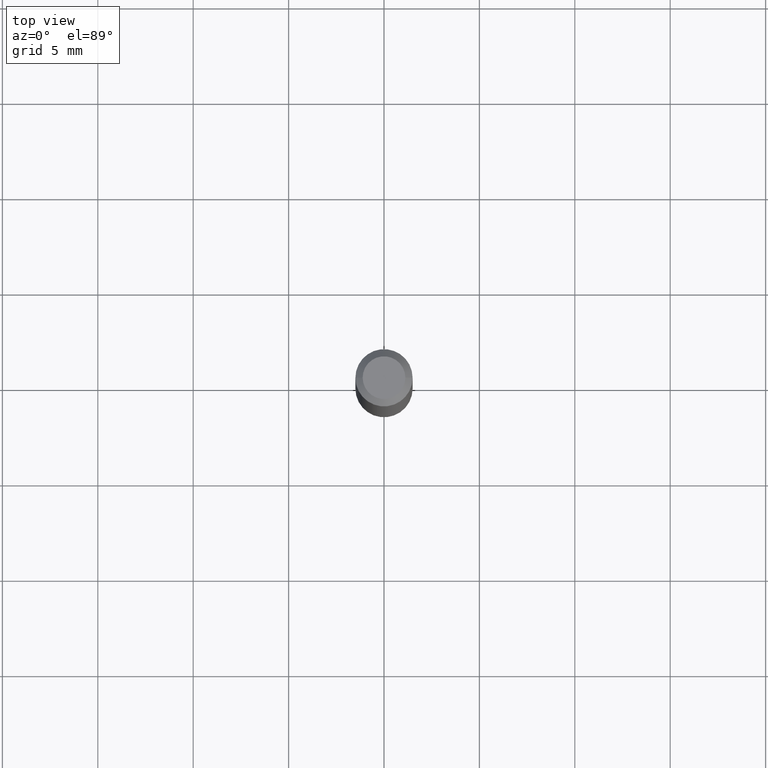
[diagram: clean part render]
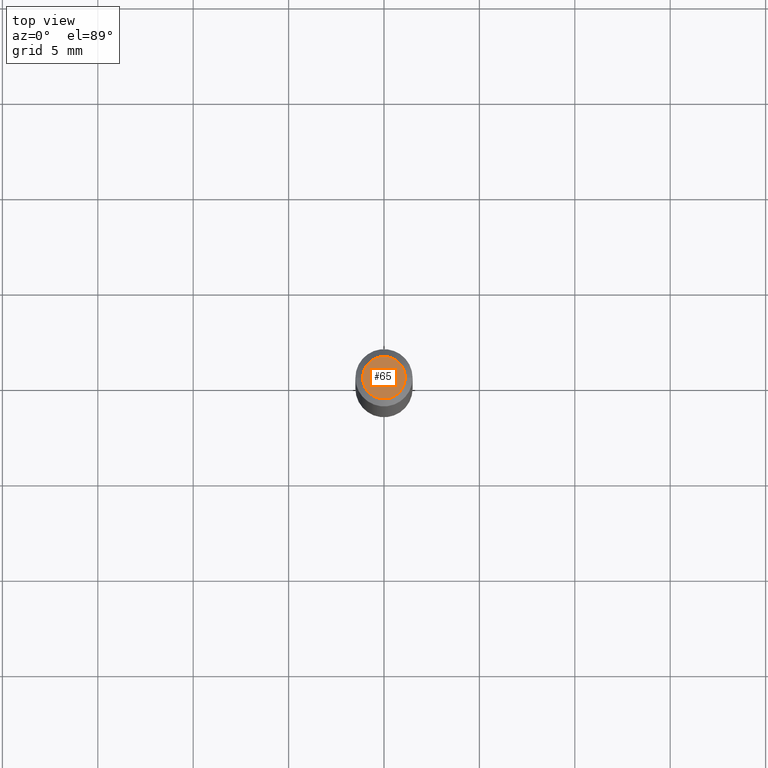
[diagram: same view with one face highlighted and labeled with its STEP entity id]
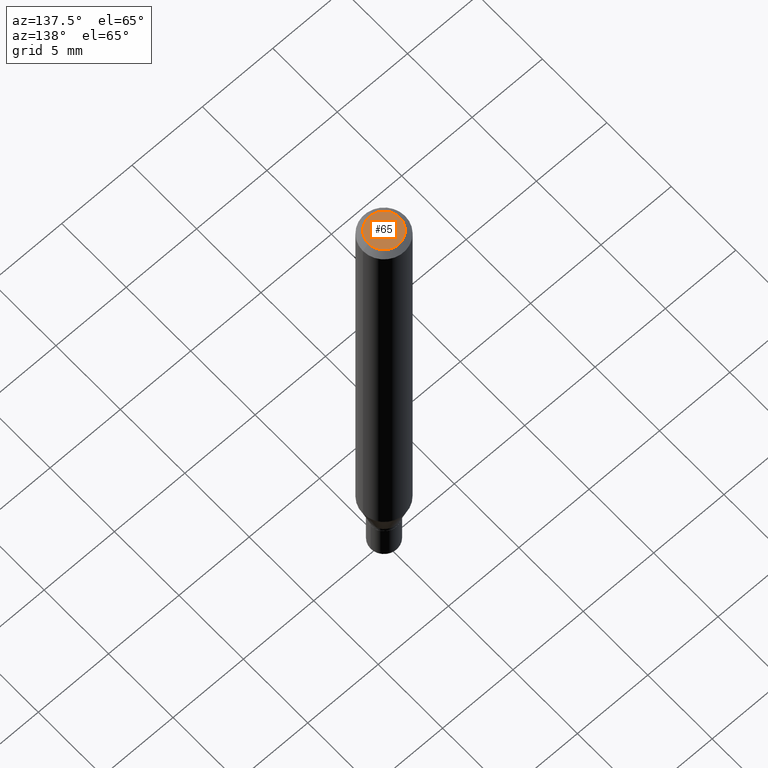
[diagram: same view with one face highlighted and labeled with its STEP entity id]
A machine part, top view. The second image highlights one B-rep face of the part: STEP entity #65.
A second angle (auxiliary view) of the same face is appended — the face is thin or edge-on in the first view.
In plain terms, the highlighted planar face has unit normal (0, -0, -1).
Its self-contained STEP definition (entity closure, byte-faithful):
#7 = DIRECTION ( 'NONE',  ( -2.445468806185136597E-29, 3.491481338843145583E-15, 1.000000000000000000 ) ) ;
#46 = ORIENTED_EDGE ( 'NONE', *, *, #147, .T. ) ;
#53 = ORIENTED_EDGE ( 'NONE', *, *, #303, .T. ) ;
#62 = FACE_OUTER_BOUND ( 'NONE', #326, .T. ) ;
#65 = ADVANCED_FACE ( 'NONE', ( #62 ), #192, .F. ) ;
#66 = DIRECTION ( 'NONE',  ( -2.445468806185136597E-29, 3.491481338843145583E-15, 1.000000000000000000 ) ) ;
#98 = CARTESIAN_POINT ( 'NONE',  ( -2.903582104602009454E-45, 4.145545716378002760E-31, 1.187331483132478339E-16 ) ) ;
#144 = DIRECTION ( 'NONE',  ( 1.000000000000000000, -6.982962677686265922E-15, 4.888540261209747396E-29 ) ) ;
#147 = EDGE_CURVE ( 'NONE', #286, #451, #299, .T. ) ;
#173 = AXIS2_PLACEMENT_3D ( 'NONE', #98, #66, #385 ) ;
#180 = CARTESIAN_POINT ( 'NONE',  ( -2.903582104602009454E-45, 4.145545716378002760E-31, 1.187331483132478339E-16 ) ) ;
#192 = PLANE ( 'NONE',  #307 ) ;
#201 = CARTESIAN_POINT ( 'NONE',  ( 0.04404999999999999888, -3.798447818264458600E-16, 1.187331483132502252E-16 ) ) ;
#211 = CARTESIAN_POINT ( 'NONE',  ( 3.075995059520799729E-16, 0.04404999999999999888, -9.443317881941664879E-17 ) ) ;
#247 = CARTESIAN_POINT ( 'NONE',  ( -0.04404999999999999888, 3.337856159934036604E-16, 1.187331483132455906E-16 ) ) ;
#272 = DIRECTION ( 'NONE',  ( 2.438088387897960049E-29, -3.491481338843145188E-15, -1.000000000000000000 ) ) ;
#286 = VERTEX_POINT ( 'NONE', #247 ) ;
#299 = CIRCLE ( 'NONE', #426, 0.04404999999999999888 ) ;
#303 = EDGE_CURVE ( 'NONE', #451, #286, #367, .T. ) ;
#307 = AXIS2_PLACEMENT_3D ( 'NONE', #211, #272, #376 ) ;
#326 = EDGE_LOOP ( 'NONE', ( #46, #53 ) ) ;
#367 = CIRCLE ( 'NONE', #173, 0.04404999999999999888 ) ;
#376 = DIRECTION ( 'NONE',  ( -1.000000000000000000, 6.982962677686265922E-15, -4.876176775795935793E-29 ) ) ;
#385 = DIRECTION ( 'NONE',  ( 1.000000000000000000, -6.982962677686265922E-15, 4.888540261209747396E-29 ) ) ;
#426 = AXIS2_PLACEMENT_3D ( 'NONE', #180, #7, #144 ) ;
#451 = VERTEX_POINT ( 'NONE', #201 ) ;